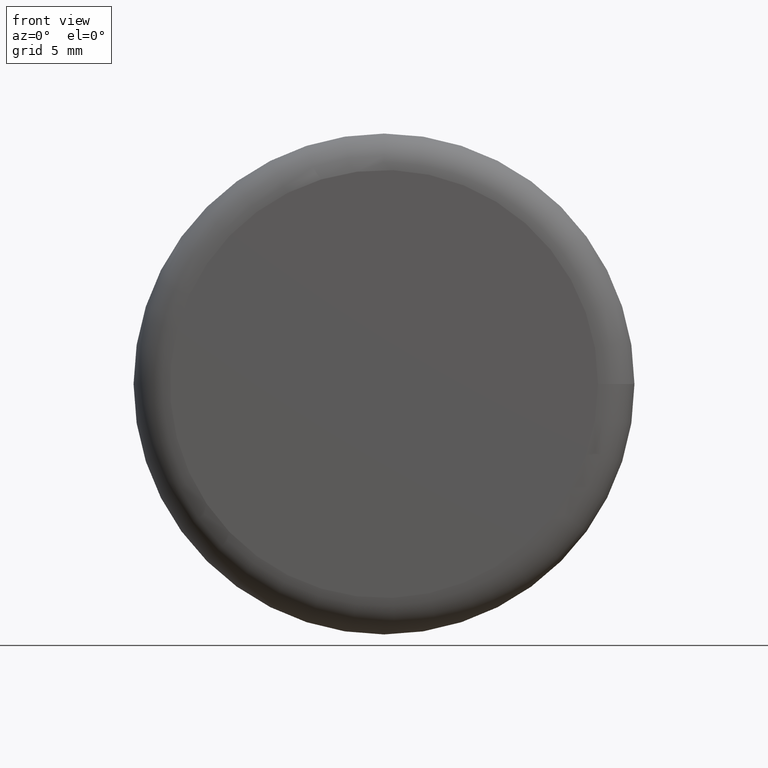
[diagram: clean part render]
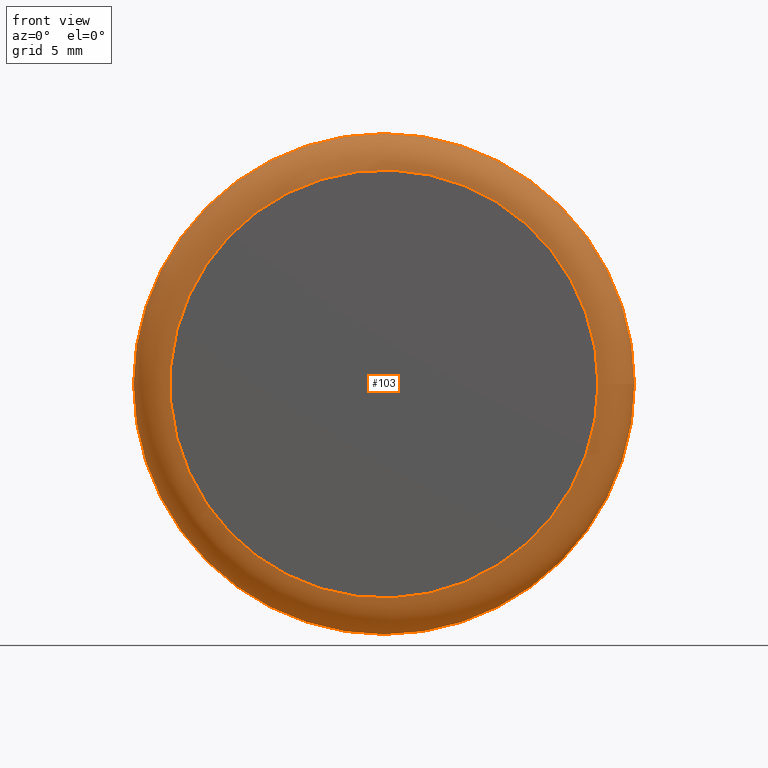
[diagram: same view with one face highlighted and labeled with its STEP entity id]
A machine part, front view. The second image highlights one B-rep face of the part: STEP entity #103.
In plain terms, the highlighted toroidal blend (fillet) surface has major radius 11.75 mm and minor (blend) radius 2 mm.
Its self-contained STEP definition (entity closure, byte-faithful):
#103=ADVANCED_FACE('',(#164,#166),#168,.T.);
#164=FACE_OUTER_BOUND('',#165,.T.);
#165=EDGE_LOOP('',(#189));
#166=FACE_OUTER_BOUND('',#167,.T.);
#167=EDGE_LOOP('',(#190));
#168=TOROIDAL_SURFACE('',#169,11.75,2.);
#169=AXIS2_PLACEMENT_3D('',#170,#171,#172);
#170=CARTESIAN_POINT('',(0.,2.,0.));
#171=DIRECTION('',(-0.,1.,0.));
#172=DIRECTION('',(1.,0.,0.));
#189=ORIENTED_EDGE('',*,*,#196,.F.);
#190=ORIENTED_EDGE('',*,*,#197,.T.);
#196=EDGE_CURVE('',#206,#206,#207,.T.);
#197=EDGE_CURVE('',#208,#208,#209,.T.);
#206=VERTEX_POINT('',#230);
#207=CIRCLE('',#231,13.75);
#208=VERTEX_POINT('',#235);
#209=CIRCLE('',#236,11.75);
#230=CARTESIAN_POINT('',(13.75,2.,1.68388934882761E-015));
#231=AXIS2_PLACEMENT_3D('',#232,#233,#234);
#232=CARTESIAN_POINT('',(0.,2.,0.));
#233=DIRECTION('',(-0.,1.,0.));
#234=DIRECTION('',(1.,0.,0.));
#235=CARTESIAN_POINT('',(11.75,0.,1.43895998899814E-015));
#236=AXIS2_PLACEMENT_3D('',#237,#238,#239);
#237=CARTESIAN_POINT('',(0.,0.,0.));
#238=DIRECTION('',(-0.,1.,0.));
#239=DIRECTION('',(1.,0.,0.));